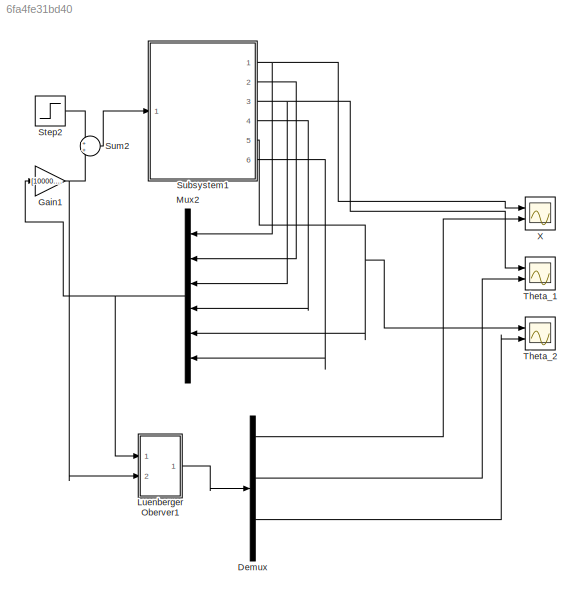
MODEL slx_6fa4fe31bd40
KIND model
CONFIG AbsTol = auto
CONFIG EnableMultiTasking = off
CONFIG FixedStep = auto
CONFIG MaxStep = auto
CONFIG MinStep = auto
CONFIG RelTol = 1e-3
CONFIG SampleTimeConstraint = Unconstrained
CONFIG Solver = ode45
CONFIG SolverName = ode45
CONFIG StartTime = 0.0
CONFIG StopTime = 10
BLOCK [Demux] Demux
  DisplayOption = bar
  Outputs = 6
  Ports = [1, 6]
BLOCK [Gain] Gain1
  Gain = [10000.000 , 9495.4117 ,  21169.4517 , -32255.5023 , 11278.5179 , -29447.449]
  Multiplication = Matrix(K*u)
  OutDataTypeStr = Inherit: Inherit via internal rule
  ParamDataTypeStr = Inherit: Inherit via internal rule
  SaturateOnIntegerOverflow = off
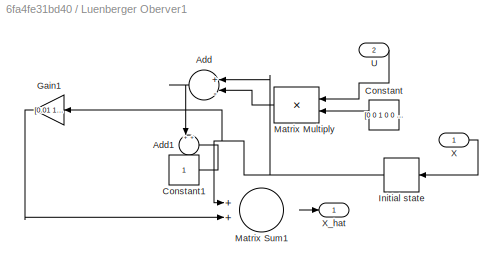
BLOCK [SubSystem] Luenberger Oberver1
  Ports = [2, 1]
  RequestExecContextInheritance = off
BLOCK [Sum] Luenberger Oberver1/Add
  InputSameDT = off
  Inputs = +|-
  OutDataTypeStr = Inherit: Inherit via internal rule
  Ports = [2, 1]
  SaturateOnIntegerOverflow = off
BLOCK [Sum] Luenberger Oberver1/Add1
  IconShape = round
  InputSameDT = off
  OutDataTypeStr = Inherit: Inherit via internal rule
  Ports = [2, 1]
  SaturateOnIntegerOverflow = off
BLOCK [Constant] Luenberger Oberver1/Constant
  Value = [0 0 1 0 0 0]
  VectorParams1D = off
BLOCK [Constant] Luenberger Oberver1/Constant1
BLOCK [Gain] Luenberger Oberver1/Gain1
  Gain = [0.01 1 0.01 1 0.01 1]
  OutDataTypeStr = Inherit: Inherit via internal rule
  ParamDataTypeStr = Inherit: Inherit via internal rule
  SaturateOnIntegerOverflow = off
BLOCK [Delay] Luenberger Oberver1/Initial state
  InputPortMap = u0
  Ports = [1, 1]
  SampleTime = 0.1
BLOCK [Product] Luenberger Oberver1/Matrix Multiply
  InputSameDT = off
  Inputs = **
  OutDataTypeStr = Inherit: Inherit via internal rule
  OutMax = 0
  OutMin = 0
  Ports = [2, 1]
  RndMeth = Floor
  SaturateOnIntegerOverflow = off
BLOCK [Sum] Luenberger Oberver1/Matrix Sum1
  InputSameDT = off
  Inputs = 2
  OutDataTypeStr = Inherit: Inherit via internal rule
  Ports = [2, 1]
  SaturateOnIntegerOverflow = off
BLOCK [Inport] Luenberger Oberver1/U
  IconDisplay = Port number
  Port = 2
BLOCK [Inport] Luenberger Oberver1/X
  IconDisplay = Port number
BLOCK [Outport] Luenberger Oberver1/X_hat
  IconDisplay = Port number
BLOCK [Mux] Mux2
  DisplayOption = bar
  Inputs = 6
  Ports = [6, 1]
BLOCK [Step] Step2
  After = 500
  SampleTime = 0
  VectorParams1D = off
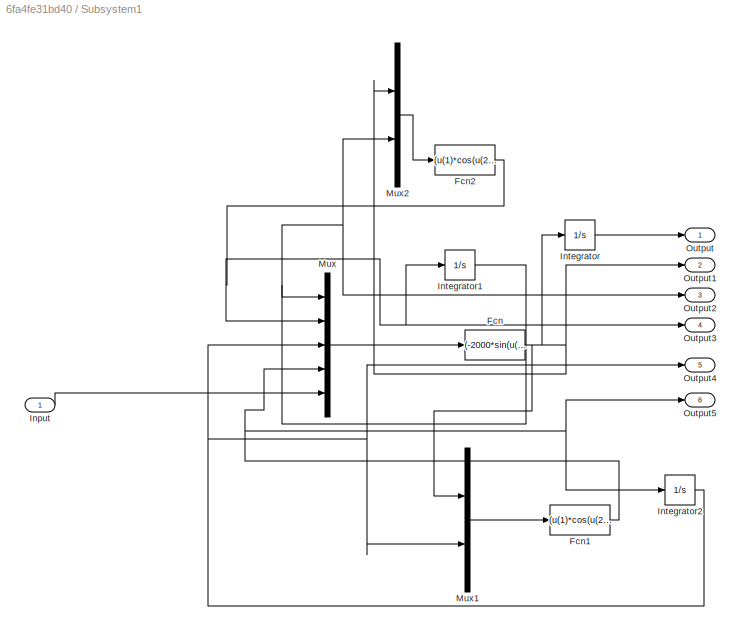
BLOCK [SubSystem] Subsystem1
  Ports = [1, 6]
  RequestExecContextInheritance = off
BLOCK [Fcn] Subsystem1/Fcn
  Expr = (-2000*sin(u(1))*u(2)^2 + 1000*sin(u(3))*u(4)^2-u(5)+981*cos(u(1))*sin(u(1))+981*cos(u(3))*sin(u(3)))/(100*sin(u(1))^2+100*sin(u(3))^2+1000)
BLOCK [Fcn] Subsystem1/Fcn1
  Expr = (u(1)*cos(u(2))-9.81*sin(u(2))) / 10
BLOCK [Fcn] Subsystem1/Fcn2
  Expr = (u(1)*cos(u(2))-9.81*sin(u(2))) / 20
BLOCK [Inport] Subsystem1/Input
  IconDisplay = Port number
BLOCK [Integrator] Subsystem1/Integrator
  InitialCondition = 1
  Ports = [1, 1]
BLOCK [Integrator] Subsystem1/Integrator1
  InitialCondition = .2
  Ports = [1, 1]
BLOCK [Integrator] Subsystem1/Integrator2
  InitialCondition = .2
  Ports = [1, 1]
BLOCK [Mux] Subsystem1/Mux
  DisplayOption = bar
  Inputs = 5
  Ports = [5, 1]
BLOCK [Mux] Subsystem1/Mux1
  DisplayOption = bar
  Inputs = 2
  Ports = [2, 1]
BLOCK [Mux] Subsystem1/Mux2
  DisplayOption = bar
  Inputs = 2
  Ports = [2, 1]
BLOCK [Outport] Subsystem1/Output
  IconDisplay = Port number
BLOCK [Outport] Subsystem1/Output1
  IconDisplay = Port number
  Port = 2
BLOCK [Outport] Subsystem1/Output2
  IconDisplay = Port number
  Port = 3
BLOCK [Outport] Subsystem1/Output3
  IconDisplay = Port number
  Port = 4
BLOCK [Outport] Subsystem1/Output4
  IconDisplay = Port number
  Port = 5
BLOCK [Outport] Subsystem1/Output5
  IconDisplay = Port number
  Port = 6
BLOCK [Sum] Sum2
  IconShape = round
  InputSameDT = off
  Inputs = 2
  OutDataTypeStr = Inherit: Inherit via internal rule
  Ports = [2, 1]
  SaturateOnIntegerOverflow = off
BLOCK [Scope] Theta_1
  Floating = off
  NumInputPorts = 2
  Ports = [2]
  ScopeSpecificationString = Simulink.scopes.TimeScopeBlockCfg('CurrentConfiguration', extmgr.ConfigurationSet(extmgr.Configuration('Core','General UI',true),extmgr.Configuration('Core','Source UI',true),extmgr.Configuration('Sources','WiredSimulink',true,'DataLoggingVariableName','ScopeData1'),extmgr.Configuration('Visuals','Time Domain',true,'SerializedDisplays',{struct('MinYLimReal','-0.02525','MaxYLimReal','0.22725','YLab...<+1381ch>
BLOCK [Scope] Theta_2
  Floating = off
  NumInputPorts = 2
  Ports = [2]
  ScopeSpecificationString = Simulink.scopes.TimeScopeBlockCfg('CurrentConfiguration', extmgr.ConfigurationSet(extmgr.Configuration('Core','General UI',true),extmgr.Configuration('Core','Source UI',true),extmgr.Configuration('Sources','WiredSimulink',true,'DataLoggingVariableName','ScopeData2'),extmgr.Configuration('Visuals','Time Domain',true),extmgr.Configuration('Tools','Plot Navigation',true),extmgr.Configuration('Tools',...<+40ch>
BLOCK [Scope] X
  Floating = off
  NumInputPorts = 2
  Ports = [2]
  ScopeSpecificationString = Simulink.scopes.TimeScopeBlockCfg('CurrentConfiguration', extmgr.ConfigurationSet(extmgr.Configuration('Core','General UI',true),extmgr.Configuration('Core','Source UI',true),extmgr.Configuration('Sources','WiredSimulink',true),extmgr.Configuration('Visuals','Time Domain',true,'SerializedDisplays',{struct('MinYLimReal','-0.4625','MaxYLimReal','1.17361','YLabelReal','','MinYLimMag','0.00000','MaxYL...<+1340ch>
LINE Demux:1 -> X:2
LINE Demux:3 -> Theta_1:2
LINE Demux:5 -> Theta_2:2
NET Gain1:1 -> Luenberger Oberver1:2, Sum2:2
LINE Luenberger Oberver1/Add:1 -> Luenberger Oberver1/Add1:1
LINE Luenberger Oberver1/Constant1:1 -> Luenberger Oberver1/Add1:2
LINE Luenberger Oberver1/Constant:1 -> Luenberger Oberver1/Matrix Multiply:2
LINE Luenberger Oberver1/Gain1:1 -> Luenberger Oberver1/Matrix Sum1:2
NET Luenberger Oberver1/Initial state:1 -> Luenberger Oberver1/Add:1, Luenberger Oberver1/Gain1:1, Luenberger Oberver1/Matrix Sum1:1
LINE Luenberger Oberver1/Matrix Multiply:1 -> Luenberger Oberver1/Add:2
LINE Luenberger Oberver1/Matrix Sum1:1 -> Luenberger Oberver1/X_hat:1
LINE Luenberger Oberver1/U:1 -> Luenberger Oberver1/Matrix Multiply:1
LINE Luenberger Oberver1/X:1 -> Luenberger Oberver1/Initial state:1
LINE Luenberger Oberver1:1 -> Demux:1
NET Mux2:1 -> Gain1:1, Luenberger Oberver1:1
LINE Step2:1 -> Sum2:1
NET Subsystem1/Fcn1:1 -> Subsystem1/Integrator2:1, Subsystem1/Mux:4, Subsystem1/Output5:1
NET Subsystem1/Fcn2:1 -> Subsystem1/Integrator1:1, Subsystem1/Mux:2, Subsystem1/Output3:1
NET Subsystem1/Fcn:1 -> Subsystem1/Integrator:1, Subsystem1/Mux1:1, Subsystem1/Mux2:1, Subsystem1/Output1:1
LINE Subsystem1/Input:1 -> Subsystem1/Mux:5
NET Subsystem1/Integrator1:1 -> Subsystem1/Mux2:2, Subsystem1/Mux:1, Subsystem1/Output2:1
NET Subsystem1/Integrator2:1 -> Subsystem1/Mux1:2, Subsystem1/Mux:3, Subsystem1/Output4:1
LINE Subsystem1/Integrator:1 -> Subsystem1/Output:1
LINE Subsystem1/Mux1:1 -> Subsystem1/Fcn1:1
LINE Subsystem1/Mux2:1 -> Subsystem1/Fcn2:1
LINE Subsystem1/Mux:1 -> Subsystem1/Fcn:1
NET Subsystem1:1 -> Mux2:1, X:1
LINE Subsystem1:2 -> Mux2:2
NET Subsystem1:3 -> Mux2:3, Theta_1:1
LINE Subsystem1:4 -> Mux2:4
NET Subsystem1:5 -> Mux2:5, Theta_2:1
LINE Subsystem1:6 -> Mux2:6
LINE Sum2:1 -> Subsystem1:1
note: NET lines group one-source signal fan-out (src -> all destinations, sorted); 1:1 wires keep LINE
